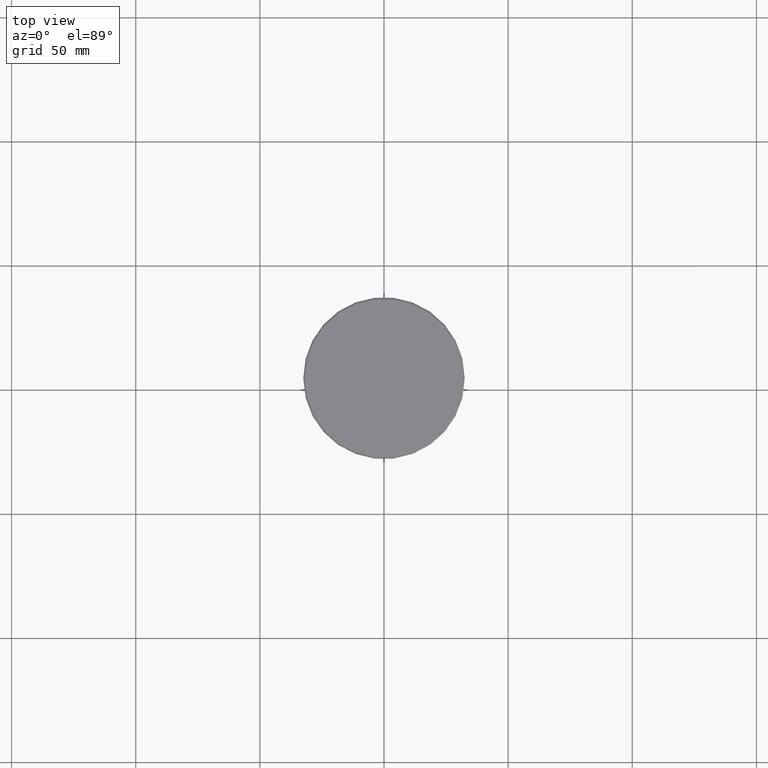
[diagram: clean part render]
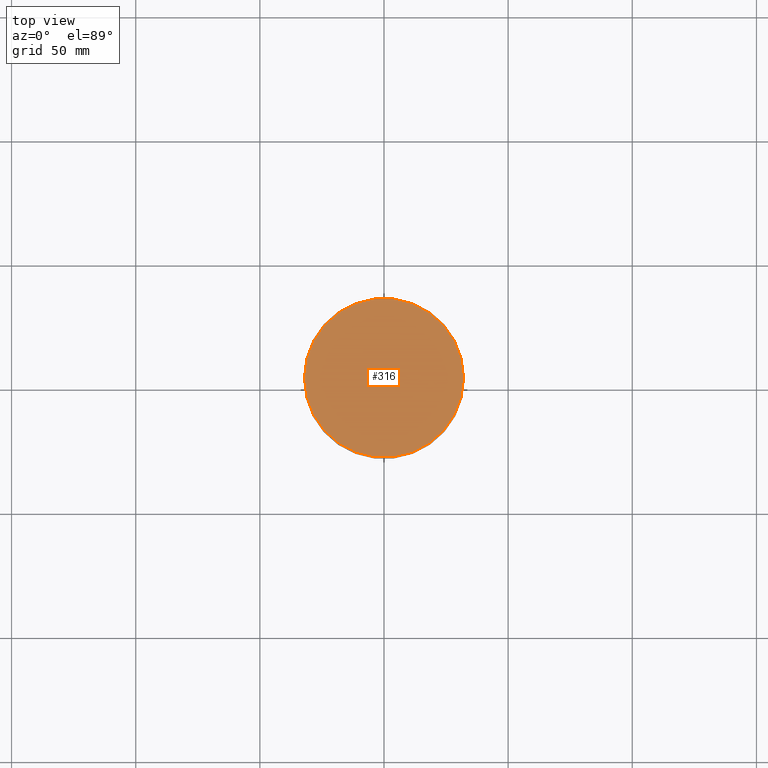
[diagram: same view with one face highlighted and labeled with its STEP entity id]
A machine part, top view. The second image highlights one B-rep face of the part: STEP entity #316.
In plain terms, the highlighted planar face has unit normal (0, -0, 1).
Its self-contained STEP definition (entity closure, byte-faithful):
#54 = DIRECTION ( 'NONE',  ( 1.000000000000000000, 0.000000000000000000, 0.000000000000000000 ) ) ;
#59 = ORIENTED_EDGE ( 'NONE', *, *, #1166, .T. ) ;
#64 = FACE_OUTER_BOUND ( 'NONE', #531, .T. ) ;
#96 = CARTESIAN_POINT ( 'NONE',  ( 0.000000000000000000, 0.000000000000000000, 0.000000000000000000 ) ) ;
#98 = CARTESIAN_POINT ( 'NONE',  ( -32.00000000000000000, 0.000000000000000000, 0.000000000000000000 ) ) ;
#182 = AXIS2_PLACEMENT_3D ( 'NONE', #96, #903, #821 ) ;
#223 = ORIENTED_EDGE ( 'NONE', *, *, #1000, .T. ) ;
#300 = CIRCLE ( 'NONE', #182, 32.00000000000000000 ) ;
#311 = AXIS2_PLACEMENT_3D ( 'NONE', #973, #890, #1162 ) ;
#316 = ADVANCED_FACE ( 'NONE', ( #64 ), #809, .T. ) ;
#416 = VERTEX_POINT ( 'NONE', #98 ) ;
#434 = CARTESIAN_POINT ( 'NONE',  ( 0.000000000000000000, 0.000000000000000000, 0.000000000000000000 ) ) ;
#531 = EDGE_LOOP ( 'NONE', ( #59, #223 ) ) ;
#616 = CARTESIAN_POINT ( 'NONE',  ( 32.00000000000000000, 3.949485927250214839E-15, 0.000000000000000000 ) ) ;
#719 = VERTEX_POINT ( 'NONE', #616 ) ;
#809 = PLANE ( 'NONE',  #1124 ) ;
#821 = DIRECTION ( 'NONE',  ( 1.000000000000000000, 0.000000000000000000, 0.000000000000000000 ) ) ;
#834 = CIRCLE ( 'NONE', #311, 32.00000000000000000 ) ;
#890 = DIRECTION ( 'NONE',  ( -0.000000000000000000, -0.000000000000000000, 1.000000000000000000 ) ) ;
#903 = DIRECTION ( 'NONE',  ( -0.000000000000000000, -0.000000000000000000, 1.000000000000000000 ) ) ;
#967 = DIRECTION ( 'NONE',  ( 0.000000000000000000, -0.000000000000000000, 1.000000000000000000 ) ) ;
#973 = CARTESIAN_POINT ( 'NONE',  ( 0.000000000000000000, 0.000000000000000000, 0.000000000000000000 ) ) ;
#1000 = EDGE_CURVE ( 'NONE', #719, #416, #834, .T. ) ;
#1124 = AXIS2_PLACEMENT_3D ( 'NONE', #434, #967, #54 ) ;
#1162 = DIRECTION ( 'NONE',  ( 1.000000000000000000, 0.000000000000000000, 0.000000000000000000 ) ) ;
#1166 = EDGE_CURVE ( 'NONE', #416, #719, #300, .T. ) ;